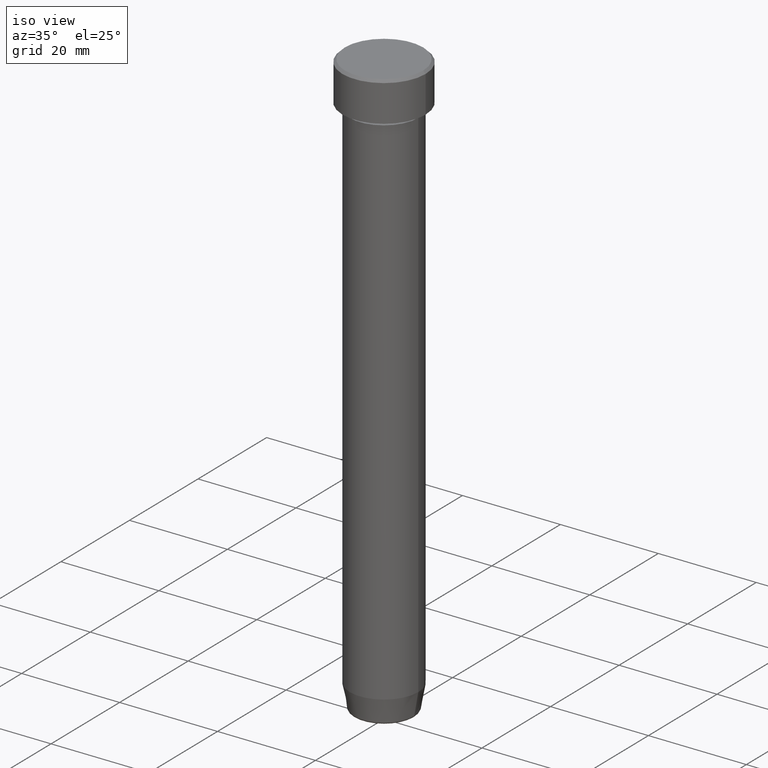
[diagram: clean part render]
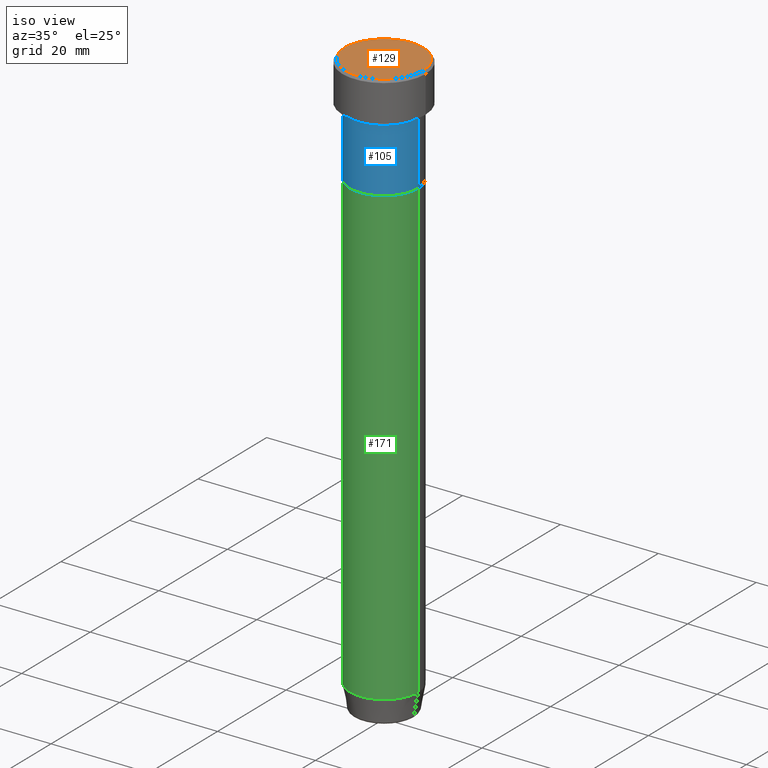
[diagram: same view with three faces highlighted in distinct colors, each labeled with its STEP entity id]
A machine part, iso view with three faces highlighted in distinct colors.
Their STEP definitions:

[orange] entity #129 — the highlighted planar face has unit normal (0, -0, 1).
#4 = CIRCLE ( 'NONE', #506, 8.000000000000000000 ) ;
#14 = CARTESIAN_POINT ( 'NONE',  ( 0.000000000000000000, 0.000000000000000000, 0.000000000000000000 ) ) ;
#49 = VERTEX_POINT ( 'NONE', #524 ) ;
#62 = DIRECTION ( 'NONE',  ( 0.000000000000000000, -0.000000000000000000, 1.000000000000000000 ) ) ;
#79 = AXIS2_PLACEMENT_3D ( 'NONE', #378, #81, #269 ) ;
#81 = DIRECTION ( 'NONE',  ( -0.000000000000000000, -0.000000000000000000, 1.000000000000000000 ) ) ;
#84 = ORIENTED_EDGE ( 'NONE', *, *, #598, .T. ) ;
#106 = EDGE_LOOP ( 'NONE', ( #367, #84 ) ) ;
#129 = ADVANCED_FACE ( 'NONE', ( #522 ), #239, .T. ) ;
#239 = PLANE ( 'NONE',  #328 ) ;
#240 = CARTESIAN_POINT ( 'NONE',  ( 0.000000000000000000, 0.000000000000000000, 0.000000000000000000 ) ) ;
#269 = DIRECTION ( 'NONE',  ( 1.000000000000000000, 0.000000000000000000, 0.000000000000000000 ) ) ;
#328 = AXIS2_PLACEMENT_3D ( 'NONE', #14, #62, #349 ) ;
#330 = CARTESIAN_POINT ( 'NONE',  ( -8.000000000000000000, 0.000000000000000000, 0.000000000000000000 ) ) ;
#349 = DIRECTION ( 'NONE',  ( 1.000000000000000000, 0.000000000000000000, 0.000000000000000000 ) ) ;
#367 = ORIENTED_EDGE ( 'NONE', *, *, #387, .T. ) ;
#378 = CARTESIAN_POINT ( 'NONE',  ( 0.000000000000000000, 0.000000000000000000, 0.000000000000000000 ) ) ;
#383 = DIRECTION ( 'NONE',  ( -0.000000000000000000, -0.000000000000000000, 1.000000000000000000 ) ) ;
#387 = EDGE_CURVE ( 'NONE', #534, #49, #4, .T. ) ;
#430 = DIRECTION ( 'NONE',  ( 1.000000000000000000, 0.000000000000000000, 0.000000000000000000 ) ) ;
#506 = AXIS2_PLACEMENT_3D ( 'NONE', #240, #383, #430 ) ;
#522 = FACE_OUTER_BOUND ( 'NONE', #106, .T. ) ;
#524 = CARTESIAN_POINT ( 'NONE',  ( 8.000000000000000000, 1.010333609296566550E-15, 0.000000000000000000 ) ) ;
#534 = VERTEX_POINT ( 'NONE', #330 ) ;
#565 = CIRCLE ( 'NONE', #79, 8.000000000000000000 ) ;
#598 = EDGE_CURVE ( 'NONE', #49, #534, #565, .T. ) ;

[blue] entity #105 — the highlighted cylindrical surface (partial cylindrical patch) has radius 7 mm, axis along (-0, -0, 1).
#15 = CIRCLE ( 'NONE', #481, 7.000000000000000000 ) ;
#23 = CARTESIAN_POINT ( 'NONE',  ( 6.999999999999999112, 0.000000000000000000, 0.000000000000000000 ) ) ;
#58 = CYLINDRICAL_SURFACE ( 'NONE', #582, 6.999999999999999112 ) ;
#59 = CARTESIAN_POINT ( 'NONE',  ( 0.000000000000000000, 0.000000000000000000, 0.000000000000000000 ) ) ;
#71 = EDGE_CURVE ( 'NONE', #223, #360, #224, .T. ) ;
#92 = VECTOR ( 'NONE', #305, 1000.000000000000000 ) ;
#100 = FACE_OUTER_BOUND ( 'NONE', #311, .T. ) ;
#105 = ADVANCED_FACE ( 'NONE', ( #100 ), #58, .T. ) ;
#109 = DIRECTION ( 'NONE',  ( -0.000000000000000000, -0.000000000000000000, 1.000000000000000000 ) ) ;
#113 = EDGE_CURVE ( 'NONE', #544, #440, #15, .T. ) ;
#115 = CARTESIAN_POINT ( 'NONE',  ( -6.999999999999999112, 8.572527594031472204E-16, -22.00000000000000000 ) ) ;
#120 = LINE ( 'NONE', #485, #92 ) ;
#146 = DIRECTION ( 'NONE',  ( -0.000000000000000000, -0.000000000000000000, 1.000000000000000000 ) ) ;
#151 = DIRECTION ( 'NONE',  ( 1.000000000000000000, 0.000000000000000000, 0.000000000000000000 ) ) ;
#169 = EDGE_CURVE ( 'NONE', #223, #544, #120, .T. ) ;
#186 = DIRECTION ( 'NONE',  ( -0.000000000000000000, -0.000000000000000000, 1.000000000000000000 ) ) ;
#190 = EDGE_CURVE ( 'NONE', #360, #440, #436, .T. ) ;
#199 = ORIENTED_EDGE ( 'NONE', *, *, #169, .F. ) ;
#223 = VERTEX_POINT ( 'NONE', #115 ) ;
#224 = CIRCLE ( 'NONE', #497, 6.999999999999999112 ) ;
#282 = ORIENTED_EDGE ( 'NONE', *, *, #190, .T. ) ;
#287 = DIRECTION ( 'NONE',  ( 1.000000000000000000, 0.000000000000000000, 0.000000000000000000 ) ) ;
#305 = DIRECTION ( 'NONE',  ( -0.000000000000000000, -0.000000000000000000, 1.000000000000000000 ) ) ;
#311 = EDGE_LOOP ( 'NONE', ( #199, #509, #282, #490 ) ) ;
#360 = VERTEX_POINT ( 'NONE', #426 ) ;
#384 = VECTOR ( 'NONE', #109, 1000.000000000000000 ) ;
#425 = DIRECTION ( 'NONE',  ( 1.000000000000000000, 0.000000000000000000, 0.000000000000000000 ) ) ;
#426 = CARTESIAN_POINT ( 'NONE',  ( 6.999999999999999112, 0.000000000000000000, -22.00000000000000000 ) ) ;
#436 = LINE ( 'NONE', #23, #384 ) ;
#440 = VERTEX_POINT ( 'NONE', #525 ) ;
#455 = CARTESIAN_POINT ( 'NONE',  ( -7.000000000000000888, 8.572527594031474176E-16, -9.000000000000001776 ) ) ;
#475 = CARTESIAN_POINT ( 'NONE',  ( 0.000000000000000000, 0.000000000000000000, -22.00000000000000000 ) ) ;
#481 = AXIS2_PLACEMENT_3D ( 'NONE', #564, #146, #151 ) ;
#485 = CARTESIAN_POINT ( 'NONE',  ( -6.999999999999999112, 8.572527594031472204E-16, 0.000000000000000000 ) ) ;
#490 = ORIENTED_EDGE ( 'NONE', *, *, #113, .F. ) ;
#497 = AXIS2_PLACEMENT_3D ( 'NONE', #475, #186, #287 ) ;
#509 = ORIENTED_EDGE ( 'NONE', *, *, #71, .T. ) ;
#511 = DIRECTION ( 'NONE',  ( -0.000000000000000000, -0.000000000000000000, 1.000000000000000000 ) ) ;
#525 = CARTESIAN_POINT ( 'NONE',  ( 7.000000000000000000, 0.000000000000000000, -9.000000000000001776 ) ) ;
#544 = VERTEX_POINT ( 'NONE', #455 ) ;
#564 = CARTESIAN_POINT ( 'NONE',  ( 0.000000000000000000, 0.000000000000000000, -9.000000000000001776 ) ) ;
#582 = AXIS2_PLACEMENT_3D ( 'NONE', #59, #511, #425 ) ;

[green] entity #171 — the highlighted cylindrical surface (partial cylindrical patch) has radius 7 mm, axis along (-0, -0, 1).
#10 = CARTESIAN_POINT ( 'NONE',  ( -6.999999999999999112, 8.572527594031472204E-16, -22.00000000000000000 ) ) ;
#13 = VECTOR ( 'NONE', #573, 1000.000000000000000 ) ;
#16 = CARTESIAN_POINT ( 'NONE',  ( -6.999999999999999112, 8.572527594031472204E-16, -114.9999999999999858 ) ) ;
#20 = CARTESIAN_POINT ( 'NONE',  ( 0.000000000000000000, 0.000000000000000000, 0.000000000000000000 ) ) ;
#34 = DIRECTION ( 'NONE',  ( -0.000000000000000000, -0.000000000000000000, 1.000000000000000000 ) ) ;
#44 = CARTESIAN_POINT ( 'NONE',  ( 0.000000000000000000, 0.000000000000000000, -22.00000000000000000 ) ) ;
#64 = VERTEX_POINT ( 'NONE', #10 ) ;
#67 = DIRECTION ( 'NONE',  ( 1.000000000000000000, 0.000000000000000000, 0.000000000000000000 ) ) ;
#70 = CARTESIAN_POINT ( 'NONE',  ( 0.000000000000000000, 0.000000000000000000, -114.9999999999999858 ) ) ;
#126 = DIRECTION ( 'NONE',  ( 1.000000000000000000, 0.000000000000000000, 0.000000000000000000 ) ) ;
#134 = ORIENTED_EDGE ( 'NONE', *, *, #411, .F. ) ;
#153 = CARTESIAN_POINT ( 'NONE',  ( 6.999999999999999112, 0.000000000000000000, -114.9999999999999858 ) ) ;
#171 = ADVANCED_FACE ( 'NONE', ( #309 ), #257, .T. ) ;
#179 = ORIENTED_EDGE ( 'NONE', *, *, #258, .F. ) ;
#202 = CARTESIAN_POINT ( 'NONE',  ( 6.999999999999999112, 0.000000000000000000, -22.00000000000000000 ) ) ;
#205 = VERTEX_POINT ( 'NONE', #202 ) ;
#217 = EDGE_CURVE ( 'NONE', #463, #205, #578, .T. ) ;
#219 = ORIENTED_EDGE ( 'NONE', *, *, #217, .T. ) ;
#238 = DIRECTION ( 'NONE',  ( -0.000000000000000000, -0.000000000000000000, 1.000000000000000000 ) ) ;
#257 = CYLINDRICAL_SURFACE ( 'NONE', #370, 6.999999999999999112 ) ;
#258 = EDGE_CURVE ( 'NONE', #64, #205, #324, .T. ) ;
#297 = AXIS2_PLACEMENT_3D ( 'NONE', #44, #34, #126 ) ;
#309 = FACE_OUTER_BOUND ( 'NONE', #433, .T. ) ;
#324 = CIRCLE ( 'NONE', #297, 6.999999999999999112 ) ;
#338 = LINE ( 'NONE', #339, #410 ) ;
#339 = CARTESIAN_POINT ( 'NONE',  ( -6.999999999999999112, 8.572527594031472204E-16, 0.000000000000000000 ) ) ;
#364 = EDGE_CURVE ( 'NONE', #396, #463, #460, .T. ) ;
#370 = AXIS2_PLACEMENT_3D ( 'NONE', #20, #441, #443 ) ;
#396 = VERTEX_POINT ( 'NONE', #16 ) ;
#410 = VECTOR ( 'NONE', #523, 1000.000000000000000 ) ;
#411 = EDGE_CURVE ( 'NONE', #396, #64, #338, .T. ) ;
#433 = EDGE_LOOP ( 'NONE', ( #134, #518, #219, #179 ) ) ;
#441 = DIRECTION ( 'NONE',  ( -0.000000000000000000, -0.000000000000000000, 1.000000000000000000 ) ) ;
#443 = DIRECTION ( 'NONE',  ( 1.000000000000000000, 0.000000000000000000, 0.000000000000000000 ) ) ;
#460 = CIRCLE ( 'NONE', #539, 6.999999999999999112 ) ;
#463 = VERTEX_POINT ( 'NONE', #153 ) ;
#518 = ORIENTED_EDGE ( 'NONE', *, *, #364, .T. ) ;
#523 = DIRECTION ( 'NONE',  ( -0.000000000000000000, -0.000000000000000000, 1.000000000000000000 ) ) ;
#539 = AXIS2_PLACEMENT_3D ( 'NONE', #70, #238, #67 ) ;
#541 = CARTESIAN_POINT ( 'NONE',  ( 6.999999999999999112, 0.000000000000000000, 0.000000000000000000 ) ) ;
#573 = DIRECTION ( 'NONE',  ( -0.000000000000000000, -0.000000000000000000, 1.000000000000000000 ) ) ;
#578 = LINE ( 'NONE', #541, #13 ) ;